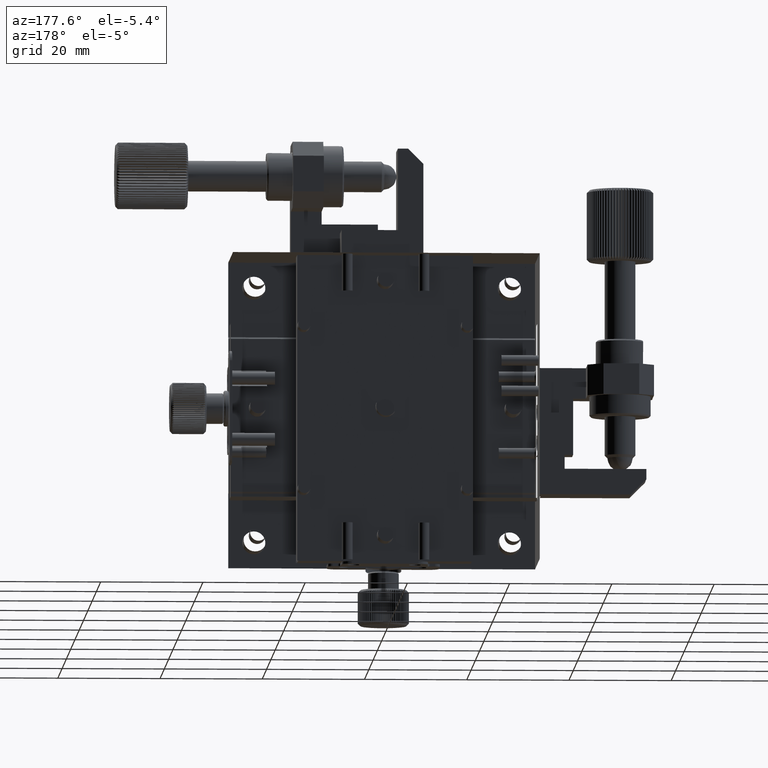
[diagram: clean part render]
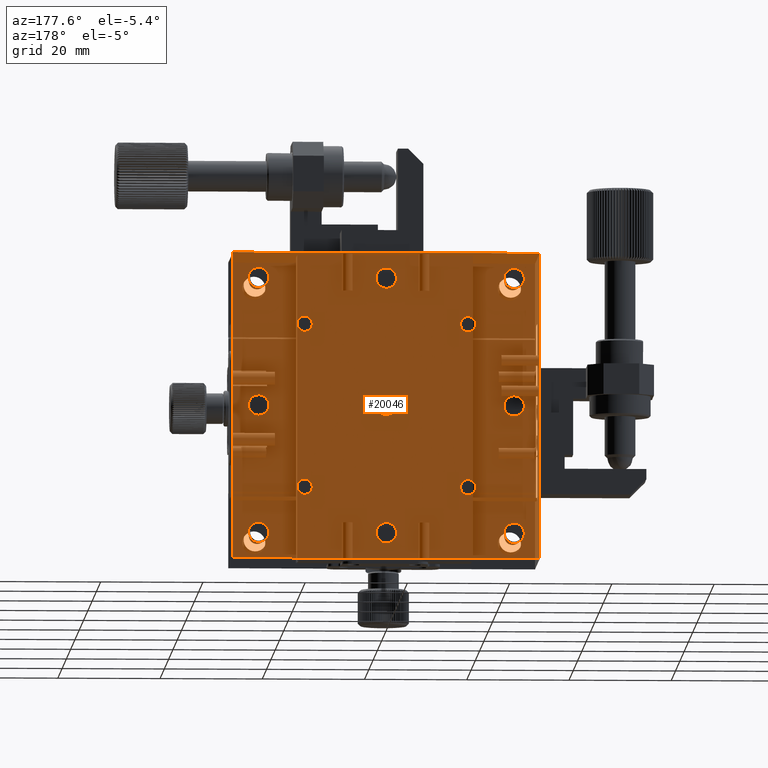
[diagram: same view with one face highlighted and labeled with its STEP entity id]
A machine part, auxiliary view. The second image highlights one B-rep face of the part: STEP entity #20046.
In plain terms, the highlighted planar face has unit normal (0, -1, 0).
Its self-contained STEP definition (entity closure, byte-faithful):
#99 = EDGE_LOOP ( 'NONE', ( #45574 ) ) ;
#549 = ORIENTED_EDGE ( 'NONE', *, *, #6279, .T. ) ;
#677 = EDGE_LOOP ( 'NONE', ( #22940 ) ) ;
#931 = DIRECTION ( 'NONE',  ( 0.000000000000000000, 1.000000000000000000, 0.000000000000000000 ) ) ;
#1118 = AXIS2_PLACEMENT_3D ( 'NONE', #22049, #10982, #31997 ) ;
#1457 = EDGE_LOOP ( 'NONE', ( #39857 ) ) ;
#1574 = CARTESIAN_POINT ( 'NONE',  ( 0.000000000000000000, 21.99999999995725375, 27.00000000006639311 ) ) ;
#1741 = AXIS2_PLACEMENT_3D ( 'NONE', #26473, #32968, #36890 ) ;
#1887 = CARTESIAN_POINT ( 'NONE',  ( -16.00000000000000000, 22.00000000002864908, 16.00000000000000000 ) ) ;
#2249 = CARTESIAN_POINT ( 'NONE',  ( 30.00000000000000000, 22.00000000000000000, 0.000000000000000000 ) ) ;
#2563 = FACE_BOUND ( 'NONE', #32156, .T. ) ;
#2787 = VERTEX_POINT ( 'NONE', #24253 ) ;
#3002 = ORIENTED_EDGE ( 'NONE', *, *, #10373, .T. ) ;
#3176 = DIRECTION ( 'NONE',  ( 1.000000000000000000, 0.000000000000000000, 0.000000000000000000 ) ) ;
#3226 = AXIS2_PLACEMENT_3D ( 'NONE', #27825, #20670, #35680 ) ;
#3665 = CARTESIAN_POINT ( 'NONE',  ( 0.000000000000000000, 22.00000000000000000, 0.000000000000000000 ) ) ;
#3848 = VERTEX_POINT ( 'NONE', #7768 ) ;
#3922 = CARTESIAN_POINT ( 'NONE',  ( -25.00000000000000000, 22.00000000002546585, -25.00000000000000000 ) ) ;
#4013 = EDGE_LOOP ( 'NONE', ( #32126 ) ) ;
#4124 = CARTESIAN_POINT ( 'NONE',  ( -16.00000000000000000, 21.99999999995407052, -14.50000000009231371 ) ) ;
#4809 = CARTESIAN_POINT ( 'NONE',  ( -25.00000000000000000, 21.99999999995725375, 26.99999999995270628 ) ) ;
#5031 = ORIENTED_EDGE ( 'NONE', *, *, #7812, .T. ) ;
#5147 = EDGE_LOOP ( 'NONE', ( #15944 ) ) ;
#5435 = CIRCLE ( 'NONE', #3226, 2.000000000066393113 ) ;
#5461 = CARTESIAN_POINT ( 'NONE',  ( 0.000000000000000000, 22.00000000002546585, -25.00000000000000000 ) ) ;
#6001 = VERTEX_POINT ( 'NONE', #38574 ) ;
#6157 = VERTEX_POINT ( 'NONE', #20593 ) ;
#6164 = VERTEX_POINT ( 'NONE', #35147 ) ;
#6238 = FACE_BOUND ( 'NONE', #23714, .T. ) ;
#6279 = EDGE_CURVE ( 'NONE', #6164, #6157, #22583, .T. ) ;
#6680 = FACE_BOUND ( 'NONE', #14299, .T. ) ;
#7153 = FACE_BOUND ( 'NONE', #677, .T. ) ;
#7662 = CIRCLE ( 'NONE', #33498, 2.000000000066393113 ) ;
#7768 = CARTESIAN_POINT ( 'NONE',  ( 16.00000000000000000, 22.00000000001091394, -14.50000000003547029 ) ) ;
#7812 = EDGE_CURVE ( 'NONE', #6001, #6001, #22117, .T. ) ;
#8741 = VERTEX_POINT ( 'NONE', #37392 ) ;
#8994 = LINE ( 'NONE', #37423, #41845 ) ;
#9182 = FACE_BOUND ( 'NONE', #29180, .T. ) ;
#9457 = VERTEX_POINT ( 'NONE', #44791 ) ;
#10162 = CARTESIAN_POINT ( 'NONE',  ( 0.000000000000000000, 22.00000000000000000, 0.000000000000000000 ) ) ;
#10211 = CIRCLE ( 'NONE', #14663, 1.999999999952706276 ) ;
#10373 = EDGE_CURVE ( 'NONE', #6157, #9457, #18737, .T. ) ;
#10682 = AXIS2_PLACEMENT_3D ( 'NONE', #5461, #29953, #32976 ) ;
#10982 = DIRECTION ( 'NONE',  ( -0.000000000000000000, 1.000000000000000000, 0.000000000000000000 ) ) ;
#11203 = DIRECTION ( 'NONE',  ( 0.000000000000000000, 0.000000000000000000, 1.000000000000000000 ) ) ;
#12048 = EDGE_CURVE ( 'NONE', #2787, #2787, #7662, .T. ) ;
#12347 = DIRECTION ( 'NONE',  ( -0.000000000000000000, 1.000000000000000000, 0.000000000000000000 ) ) ;
#12549 = ORIENTED_EDGE ( 'NONE', *, *, #26716, .T. ) ;
#12815 = ORIENTED_EDGE ( 'NONE', *, *, #21953, .T. ) ;
#12910 = LINE ( 'NONE', #26981, #38662 ) ;
#13138 = EDGE_LOOP ( 'NONE', ( #44080, #17522, #549, #3002 ) ) ;
#13192 = FACE_BOUND ( 'NONE', #1457, .T. ) ;
#13350 = CARTESIAN_POINT ( 'NONE',  ( 16.00000000000000000, 22.00000000008549250, 17.50000000002137313 ) ) ;
#13574 = CARTESIAN_POINT ( 'NONE',  ( -25.00000000000000000, 22.00000000002546585, -22.99999999993360689 ) ) ;
#14006 = AXIS2_PLACEMENT_3D ( 'NONE', #18132, #42833, #11203 ) ;
#14229 = ORIENTED_EDGE ( 'NONE', *, *, #12048, .T. ) ;
#14293 = VERTEX_POINT ( 'NONE', #28387 ) ;
#14299 = EDGE_LOOP ( 'NONE', ( #12549 ) ) ;
#14391 = DIRECTION ( 'NONE',  ( 0.000000000000000000, 0.000000000000000000, 1.000000000000000000 ) ) ;
#14643 = VERTEX_POINT ( 'NONE', #32007 ) ;
#14663 = AXIS2_PLACEMENT_3D ( 'NONE', #39797, #25016, #14391 ) ;
#14973 = AXIS2_PLACEMENT_3D ( 'NONE', #1887, #30075, #19675 ) ;
#14981 = VERTEX_POINT ( 'NONE', #17764 ) ;
#15219 = VERTEX_POINT ( 'NONE', #26293 ) ;
#15944 = ORIENTED_EDGE ( 'NONE', *, *, #20713, .T. ) ;
#16136 = VERTEX_POINT ( 'NONE', #4809 ) ;
#16304 = CIRCLE ( 'NONE', #25881, 2.000000000066393113 ) ;
#16409 = AXIS2_PLACEMENT_3D ( 'NONE', #35606, #931, #38843 ) ;
#16883 = FACE_BOUND ( 'NONE', #41913, .T. ) ;
#17522 = ORIENTED_EDGE ( 'NONE', *, *, #29135, .T. ) ;
#17551 = FACE_BOUND ( 'NONE', #40415, .T. ) ;
#17749 = DIRECTION ( 'NONE',  ( 0.000000000000000000, 1.000000000000000000, 0.000000000000000000 ) ) ;
#17764 = CARTESIAN_POINT ( 'NONE',  ( 0.000000000000000000, 22.00000000002546585, -22.99999999987676347 ) ) ;
#18132 = CARTESIAN_POINT ( 'NONE',  ( -25.00000000000000000, 22.00000000004820322, 0.000000000000000000 ) ) ;
#18335 = ORIENTED_EDGE ( 'NONE', *, *, #28473, .T. ) ;
#18737 = LINE ( 'NONE', #40004, #31277 ) ;
#19675 = DIRECTION ( 'NONE',  ( 0.000000000000000000, 0.000000000000000000, 1.000000000000000000 ) ) ;
#19725 = CARTESIAN_POINT ( 'NONE',  ( 16.00000000000000000, 22.00000000008549250, 16.00000000000000000 ) ) ;
#20046 = ADVANCED_FACE ( 'NONE', ( #40841, #9182, #23292, #42259, #2563, #6238, #7153, #13192, #6680, #16883, #17551, #41585, #20787, #23807 ), #31184, .T. ) ;
#20593 = CARTESIAN_POINT ( 'NONE',  ( 30.00000000000000000, 22.00000000000000000, 30.00000000000000000 ) ) ;
#20670 = DIRECTION ( 'NONE',  ( -0.000000000000000000, 1.000000000000000000, 0.000000000000000000 ) ) ;
#20713 = EDGE_CURVE ( 'NONE', #22132, #22132, #34966, .T. ) ;
#20787 = FACE_BOUND ( 'NONE', #99, .T. ) ;
#21713 = DIRECTION ( 'NONE',  ( -0.000000000000000000, 0.000000000000000000, 1.000000000000000000 ) ) ;
#21893 = ORIENTED_EDGE ( 'NONE', *, *, #38972, .T. ) ;
#21953 = EDGE_CURVE ( 'NONE', #14981, #14981, #43856, .T. ) ;
#22049 = CARTESIAN_POINT ( 'NONE',  ( -16.00000000000000000, 21.99999999995407052, -16.00000000000000000 ) ) ;
#22117 = CIRCLE ( 'NONE', #14006, 2.000000000009549694 ) ;
#22132 = VERTEX_POINT ( 'NONE', #28618 ) ;
#22199 = EDGE_CURVE ( 'NONE', #42246, #42246, #29873, .T. ) ;
#22250 = CIRCLE ( 'NONE', #27427, 1.500000000021373125 ) ;
#22583 = LINE ( 'NONE', #2249, #32476 ) ;
#22940 = ORIENTED_EDGE ( 'NONE', *, *, #27013, .T. ) ;
#23292 = FACE_BOUND ( 'NONE', #5147, .T. ) ;
#23467 = EDGE_LOOP ( 'NONE', ( #18335 ) ) ;
#23714 = EDGE_LOOP ( 'NONE', ( #12815 ) ) ;
#23807 = FACE_BOUND ( 'NONE', #4013, .T. ) ;
#23879 = EDGE_CURVE ( 'NONE', #14293, #14293, #43192, .T. ) ;
#24253 = CARTESIAN_POINT ( 'NONE',  ( 25.00000000000000000, 22.00000000002546585, -22.99999999993360689 ) ) ;
#24587 = ORIENTED_EDGE ( 'NONE', *, *, #23879, .T. ) ;
#24945 = DIRECTION ( 'NONE',  ( -0.000000000000000000, 1.000000000000000000, 0.000000000000000000 ) ) ;
#25016 = DIRECTION ( 'NONE',  ( 0.000000000000000000, 1.000000000000000000, 0.000000000000000000 ) ) ;
#25255 = EDGE_LOOP ( 'NONE', ( #43954 ) ) ;
#25881 = AXIS2_PLACEMENT_3D ( 'NONE', #3922, #24945, #32108 ) ;
#26114 = EDGE_CURVE ( 'NONE', #9457, #14643, #8994, .T. ) ;
#26293 = CARTESIAN_POINT ( 'NONE',  ( -16.00000000000000000, 22.00000000002864908, 17.49999999996452971 ) ) ;
#26411 = DIRECTION ( 'NONE',  ( 0.000000000000000000, 0.000000000000000000, 1.000000000000000000 ) ) ;
#26473 = CARTESIAN_POINT ( 'NONE',  ( 25.00000000000000000, 22.00000000004820322, 0.000000000000000000 ) ) ;
#26541 = DIRECTION ( 'NONE',  ( 0.000000000000000000, 0.000000000000000000, 1.000000000000000000 ) ) ;
#26716 = EDGE_CURVE ( 'NONE', #16136, #16136, #10211, .T. ) ;
#26774 = DIRECTION ( 'NONE',  ( 0.000000000000000000, -0.000000000000000000, -1.000000000000000000 ) ) ;
#26981 = CARTESIAN_POINT ( 'NONE',  ( 0.000000000000000000, 22.00000000000000000, -30.00000000000000000 ) ) ;
#27013 = EDGE_CURVE ( 'NONE', #8741, #8741, #31895, .T. ) ;
#27427 = AXIS2_PLACEMENT_3D ( 'NONE', #19725, #12347, #26411 ) ;
#27825 = CARTESIAN_POINT ( 'NONE',  ( 0.000000000000000000, 21.99999999995725375, 25.00000000000000000 ) ) ;
#27826 = EDGE_CURVE ( 'NONE', #15219, #15219, #37112, .T. ) ;
#27945 = DIRECTION ( 'NONE',  ( 0.000000000000000000, -1.000000000000000000, 0.000000000000000000 ) ) ;
#28387 = CARTESIAN_POINT ( 'NONE',  ( 0.000000000000000000, 22.00000000000000000, 2.000000000000013767 ) ) ;
#28473 = EDGE_CURVE ( 'NONE', #29303, #29303, #5435, .T. ) ;
#28618 = CARTESIAN_POINT ( 'NONE',  ( 25.00000000000000000, 22.00000000004820322, 2.000000000009549694 ) ) ;
#29135 = EDGE_CURVE ( 'NONE', #14643, #6164, #12910, .T. ) ;
#29180 = EDGE_LOOP ( 'NONE', ( #24587 ) ) ;
#29303 = VERTEX_POINT ( 'NONE', #1574 ) ;
#29781 = CARTESIAN_POINT ( 'NONE',  ( 25.00000000000000000, 22.00000000002546585, -25.00000000000000000 ) ) ;
#29873 = CIRCLE ( 'NONE', #1118, 1.499999999907686288 ) ;
#29905 = AXIS2_PLACEMENT_3D ( 'NONE', #3665, #17749, #38784 ) ;
#29953 = DIRECTION ( 'NONE',  ( -0.000000000000000000, 1.000000000000000000, 0.000000000000000000 ) ) ;
#29989 = AXIS2_PLACEMENT_3D ( 'NONE', #10162, #27945, #41819 ) ;
#30075 = DIRECTION ( 'NONE',  ( -0.000000000000000000, 1.000000000000000000, 0.000000000000000000 ) ) ;
#30676 = VERTEX_POINT ( 'NONE', #13574 ) ;
#31184 = PLANE ( 'NONE',  #29989 ) ;
#31277 = VECTOR ( 'NONE', #39553, 1000.000000000000000 ) ;
#31895 = CIRCLE ( 'NONE', #16409, 1.999999999952706276 ) ;
#31997 = DIRECTION ( 'NONE',  ( 0.000000000000000000, 0.000000000000000000, 1.000000000000000000 ) ) ;
#32007 = CARTESIAN_POINT ( 'NONE',  ( -30.00000000000000000, 22.00000000000000000, -30.00000000000000000 ) ) ;
#32108 = DIRECTION ( 'NONE',  ( 0.000000000000000000, 0.000000000000000000, 1.000000000000000000 ) ) ;
#32126 = ORIENTED_EDGE ( 'NONE', *, *, #27826, .T. ) ;
#32156 = EDGE_LOOP ( 'NONE', ( #5031 ) ) ;
#32476 = VECTOR ( 'NONE', #21713, 1000.000000000000000 ) ;
#32968 = DIRECTION ( 'NONE',  ( -0.000000000000000000, 1.000000000000000000, 0.000000000000000000 ) ) ;
#32976 = DIRECTION ( 'NONE',  ( 0.000000000000000000, 0.000000000000000000, 1.000000000000000000 ) ) ;
#33498 = AXIS2_PLACEMENT_3D ( 'NONE', #29781, #40429, #26541 ) ;
#34966 = CIRCLE ( 'NONE', #1741, 2.000000000009549694 ) ;
#35147 = CARTESIAN_POINT ( 'NONE',  ( 30.00000000000000000, 22.00000000000000000, -30.00000000000000000 ) ) ;
#35606 = CARTESIAN_POINT ( 'NONE',  ( 25.00000000000000000, 21.99999999995725375, 25.00000000000000000 ) ) ;
#35680 = DIRECTION ( 'NONE',  ( 0.000000000000000000, 0.000000000000000000, 1.000000000000000000 ) ) ;
#36047 = DIRECTION ( 'NONE',  ( 0.000000000000000000, 0.000000000000000000, 1.000000000000000000 ) ) ;
#36525 = EDGE_CURVE ( 'NONE', #30676, #30676, #16304, .T. ) ;
#36890 = DIRECTION ( 'NONE',  ( 0.000000000000000000, 0.000000000000000000, 1.000000000000000000 ) ) ;
#37112 = CIRCLE ( 'NONE', #14973, 1.499999999964529707 ) ;
#37392 = CARTESIAN_POINT ( 'NONE',  ( 25.00000000000000000, 21.99999999995725375, 26.99999999995270628 ) ) ;
#37423 = CARTESIAN_POINT ( 'NONE',  ( -30.00000000000000000, 22.00000000000000000, 0.000000000000000000 ) ) ;
#38413 = CIRCLE ( 'NONE', #45014, 1.499999999964529707 ) ;
#38574 = CARTESIAN_POINT ( 'NONE',  ( -25.00000000000000000, 22.00000000004820322, 2.000000000009549694 ) ) ;
#38662 = VECTOR ( 'NONE', #3176, 1000.000000000000000 ) ;
#38784 = DIRECTION ( 'NONE',  ( 0.000000000000000000, 0.000000000000000000, 1.000000000000000000 ) ) ;
#38843 = DIRECTION ( 'NONE',  ( 0.000000000000000000, 0.000000000000000000, 1.000000000000000000 ) ) ;
#38972 = EDGE_CURVE ( 'NONE', #41299, #41299, #22250, .T. ) ;
#39553 = DIRECTION ( 'NONE',  ( -1.000000000000000000, -0.000000000000000000, -0.000000000000000000 ) ) ;
#39797 = CARTESIAN_POINT ( 'NONE',  ( -25.00000000000000000, 21.99999999995725375, 25.00000000000000000 ) ) ;
#39857 = ORIENTED_EDGE ( 'NONE', *, *, #36525, .T. ) ;
#40004 = CARTESIAN_POINT ( 'NONE',  ( 0.000000000000000000, 22.00000000000000000, 30.00000000000000000 ) ) ;
#40190 = DIRECTION ( 'NONE',  ( -0.000000000000000000, 1.000000000000000000, 0.000000000000000000 ) ) ;
#40415 = EDGE_LOOP ( 'NONE', ( #21893 ) ) ;
#40429 = DIRECTION ( 'NONE',  ( -0.000000000000000000, 1.000000000000000000, 0.000000000000000000 ) ) ;
#40841 = FACE_OUTER_BOUND ( 'NONE', #13138, .T. ) ;
#41299 = VERTEX_POINT ( 'NONE', #13350 ) ;
#41585 = FACE_BOUND ( 'NONE', #25255, .T. ) ;
#41819 = DIRECTION ( 'NONE',  ( 0.000000000000000000, -0.000000000000000000, -1.000000000000000000 ) ) ;
#41845 = VECTOR ( 'NONE', #26774, 1000.000000000000000 ) ;
#41913 = EDGE_LOOP ( 'NONE', ( #14229 ) ) ;
#42246 = VERTEX_POINT ( 'NONE', #4124 ) ;
#42259 = FACE_BOUND ( 'NONE', #23467, .T. ) ;
#42833 = DIRECTION ( 'NONE',  ( -0.000000000000000000, 1.000000000000000000, 0.000000000000000000 ) ) ;
#42952 = CARTESIAN_POINT ( 'NONE',  ( 16.00000000000000000, 22.00000000001091394, -16.00000000000000000 ) ) ;
#43192 = CIRCLE ( 'NONE', #29905, 2.000000000000013767 ) ;
#43856 = CIRCLE ( 'NONE', #10682, 2.000000000123236532 ) ;
#43954 = ORIENTED_EDGE ( 'NONE', *, *, #45000, .T. ) ;
#44080 = ORIENTED_EDGE ( 'NONE', *, *, #26114, .T. ) ;
#44791 = CARTESIAN_POINT ( 'NONE',  ( -30.00000000000000000, 22.00000000000000000, 30.00000000000000000 ) ) ;
#45000 = EDGE_CURVE ( 'NONE', #3848, #3848, #38413, .T. ) ;
#45014 = AXIS2_PLACEMENT_3D ( 'NONE', #42952, #40190, #36047 ) ;
#45574 = ORIENTED_EDGE ( 'NONE', *, *, #22199, .T. ) ;